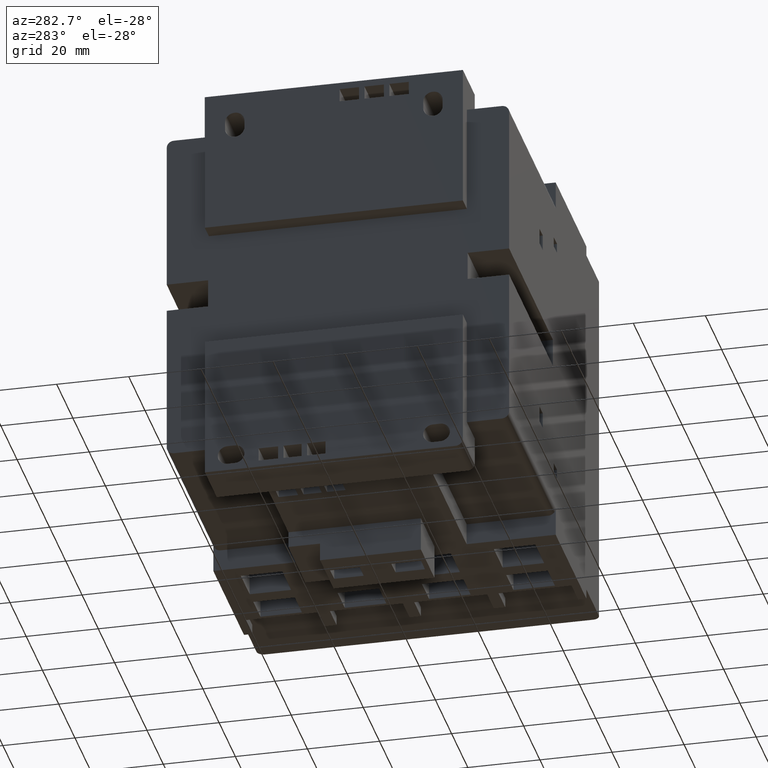
[diagram: clean part render]
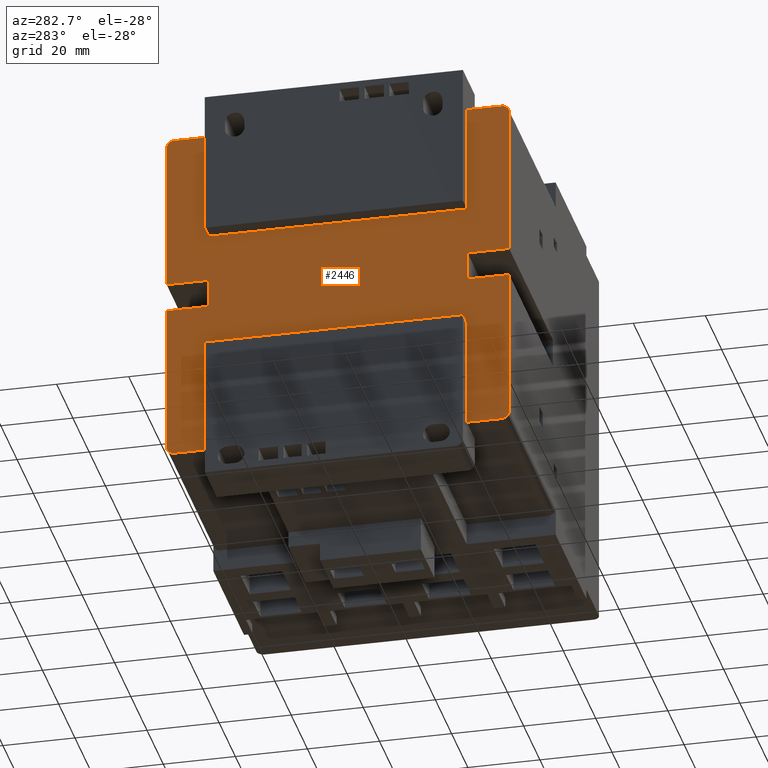
[diagram: same view with one face highlighted and labeled with its STEP entity id]
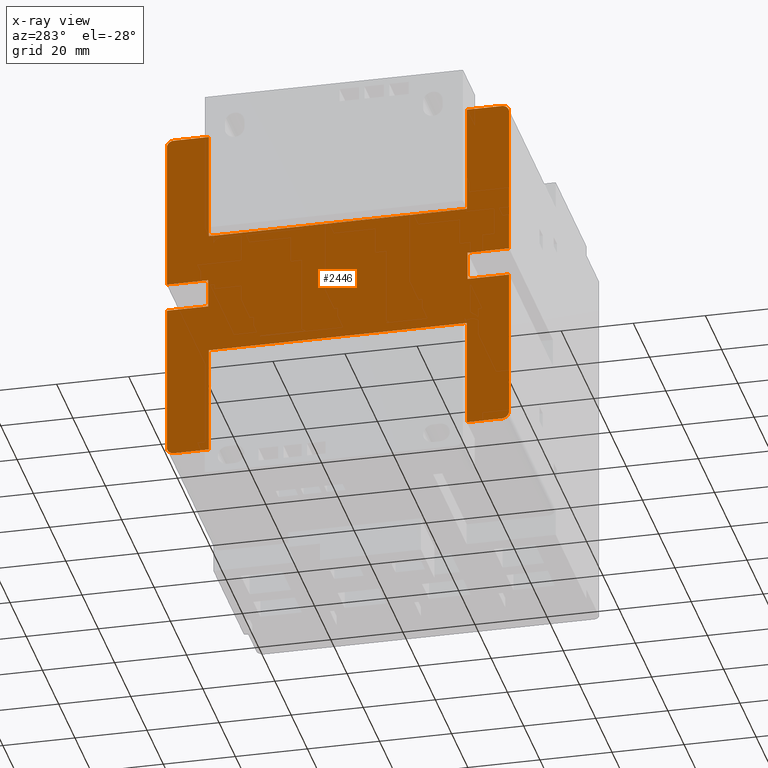
[diagram: x-ray of the same camera — body ghosted, the highlighted face saturated]
A machine part, auxiliary view. The second image highlights one B-rep face of the part: STEP entity #2446.
The next image is the same camera in x-ray: the body ghosted, the highlighted face saturated — about 0% of this face is hidden behind the body in this view.
In plain terms, the highlighted planar face has unit normal (-1, 0, 0).
Its self-contained STEP definition (entity closure, byte-faithful):
#2251=CIRCLE('',#10761,2.);
#2252=CIRCLE('',#10762,2.);
#2253=CIRCLE('',#10763,2.);
#2254=CIRCLE('',#10764,2.);
#2446=ADVANCED_FACE('',(#3268),#2872,.T.);
#2872=PLANE('',#10765);
#3268=FACE_OUTER_BOUND('',#3669,.T.);
#3669=EDGE_LOOP('',(#4236,#4237,#4238,#4239,#4240,#4241,#4242,#4243,#4244,
#4245,#4246,#4247,#4248,#4249,#4250,#4251,#4252,#4253,#4254,#4255,#4256,
#4257,#4258,#4259));
#4236=ORIENTED_EDGE('',*,*,#7217,.T.);
#4237=ORIENTED_EDGE('',*,*,#7218,.T.);
#4238=ORIENTED_EDGE('',*,*,#7219,.T.);
#4239=ORIENTED_EDGE('',*,*,#7220,.F.);
#4240=ORIENTED_EDGE('',*,*,#7221,.F.);
#4241=ORIENTED_EDGE('',*,*,#7222,.T.);
#4242=ORIENTED_EDGE('',*,*,#7223,.T.);
#4243=ORIENTED_EDGE('',*,*,#7224,.T.);
#4244=ORIENTED_EDGE('',*,*,#7225,.T.);
#4245=ORIENTED_EDGE('',*,*,#7226,.F.);
#4246=ORIENTED_EDGE('',*,*,#7227,.T.);
#4247=ORIENTED_EDGE('',*,*,#7228,.T.);
#4248=ORIENTED_EDGE('',*,*,#7229,.F.);
#4249=ORIENTED_EDGE('',*,*,#7230,.T.);
#4250=ORIENTED_EDGE('',*,*,#7231,.F.);
#4251=ORIENTED_EDGE('',*,*,#7232,.F.);
#4252=ORIENTED_EDGE('',*,*,#7233,.F.);
#4253=ORIENTED_EDGE('',*,*,#7234,.T.);
#4254=ORIENTED_EDGE('',*,*,#7235,.F.);
#4255=ORIENTED_EDGE('',*,*,#7236,.T.);
#4256=ORIENTED_EDGE('',*,*,#7237,.T.);
#4257=ORIENTED_EDGE('',*,*,#7238,.F.);
#4258=ORIENTED_EDGE('',*,*,#7239,.F.);
#4259=ORIENTED_EDGE('',*,*,#7240,.T.);
#6456=VERTEX_POINT('',#13448);
#6457=VERTEX_POINT('',#13449);
#6458=VERTEX_POINT('',#13451);
#6459=VERTEX_POINT('',#13453);
#6460=VERTEX_POINT('',#13455);
#6461=VERTEX_POINT('',#13457);
#6462=VERTEX_POINT('',#13459);
#6463=VERTEX_POINT('',#13461);
#6464=VERTEX_POINT('',#13463);
#6465=VERTEX_POINT('',#13465);
#6466=VERTEX_POINT('',#13467);
#6467=VERTEX_POINT('',#13469);
#6468=VERTEX_POINT('',#13471);
#6469=VERTEX_POINT('',#13473);
#6470=VERTEX_POINT('',#13475);
#6471=VERTEX_POINT('',#13477);
#6472=VERTEX_POINT('',#13479);
#6473=VERTEX_POINT('',#13481);
#6474=VERTEX_POINT('',#13483);
#6475=VERTEX_POINT('',#13485);
#6476=VERTEX_POINT('',#13487);
#6477=VERTEX_POINT('',#13489);
#6478=VERTEX_POINT('',#13491);
#6479=VERTEX_POINT('',#13493);
#7217=EDGE_CURVE('',#6456,#6457,#8327,.T.);
#7218=EDGE_CURVE('',#6457,#6458,#2251,.T.);
#7219=EDGE_CURVE('',#6458,#6459,#8328,.T.);
#7220=EDGE_CURVE('',#6460,#6459,#8329,.T.);
#7221=EDGE_CURVE('',#6461,#6460,#8330,.T.);
#7222=EDGE_CURVE('',#6461,#6462,#8331,.T.);
#7223=EDGE_CURVE('',#6462,#6463,#8332,.T.);
#7224=EDGE_CURVE('',#6463,#6464,#2252,.T.);
#7225=EDGE_CURVE('',#6464,#6465,#8333,.T.);
#7226=EDGE_CURVE('',#6466,#6465,#8334,.T.);
#7227=EDGE_CURVE('',#6466,#6467,#8335,.T.);
#7228=EDGE_CURVE('',#6467,#6468,#8336,.T.);
#7229=EDGE_CURVE('',#6469,#6468,#8337,.T.);
#7230=EDGE_CURVE('',#6469,#6470,#2253,.T.);
#7231=EDGE_CURVE('',#6471,#6470,#8338,.T.);
#7232=EDGE_CURVE('',#6472,#6471,#8339,.T.);
#7233=EDGE_CURVE('',#6473,#6472,#8340,.T.);
#7234=EDGE_CURVE('',#6473,#6474,#8341,.T.);
#7235=EDGE_CURVE('',#6475,#6474,#8342,.T.);
#7236=EDGE_CURVE('',#6475,#6476,#2254,.T.);
#7237=EDGE_CURVE('',#6476,#6477,#8343,.T.);
#7238=EDGE_CURVE('',#6478,#6477,#8344,.T.);
#7239=EDGE_CURVE('',#6479,#6478,#8345,.T.);
#7240=EDGE_CURVE('',#6479,#6456,#8346,.T.);
#8327=LINE('',#13447,#9373);
#8328=LINE('',#13452,#9374);
#8329=LINE('',#13454,#9375);
#8330=LINE('',#13456,#9376);
#8331=LINE('',#13458,#9377);
#8332=LINE('',#13460,#9378);
#8333=LINE('',#13464,#9379);
#8334=LINE('',#13466,#9380);
#8335=LINE('',#13468,#9381);
#8336=LINE('',#13470,#9382);
#8337=LINE('',#13472,#9383);
#8338=LINE('',#13476,#9384);
#8339=LINE('',#13478,#9385);
#8340=LINE('',#13480,#9386);
#8341=LINE('',#13482,#9387);
#8342=LINE('',#13484,#9388);
#8343=LINE('',#13488,#9389);
#8344=LINE('',#13490,#9390);
#8345=LINE('',#13492,#9391);
#8346=LINE('',#13494,#9392);
#9373=VECTOR('',#11352,1.);
#9374=VECTOR('',#11355,1.);
#9375=VECTOR('',#11356,1.);
#9376=VECTOR('',#11357,1.);
#9377=VECTOR('',#11358,1.);
#9378=VECTOR('',#11359,1.);
#9379=VECTOR('',#11362,1.);
#9380=VECTOR('',#11363,1.);
#9381=VECTOR('',#11364,1.);
#9382=VECTOR('',#11365,1.);
#9383=VECTOR('',#11366,1.);
#9384=VECTOR('',#11369,1.);
#9385=VECTOR('',#11370,1.);
#9386=VECTOR('',#11371,1.);
#9387=VECTOR('',#11372,1.);
#9388=VECTOR('',#11373,1.);
#9389=VECTOR('',#11376,1.);
#9390=VECTOR('',#11377,1.);
#9391=VECTOR('',#11378,1.);
#9392=VECTOR('',#11379,1.);
#10761=AXIS2_PLACEMENT_3D('',#13450,#11353,#11354);
#10762=AXIS2_PLACEMENT_3D('',#13462,#11360,#11361);
#10763=AXIS2_PLACEMENT_3D('',#13474,#11367,#11368);
#10764=AXIS2_PLACEMENT_3D('',#13486,#11374,#11375);
#10765=AXIS2_PLACEMENT_3D('',#13495,#11380,#11381);
#11352=DIRECTION('',(1.,0.,-2.34290668463255E-015));
#11353=DIRECTION('',(0.,0.,-1.));
#11354=DIRECTION('',(-1.,0.,0.));
#11355=DIRECTION('',(0.,-1.,0.));
#11356=DIRECTION('',(1.,0.,1.17145334231628E-015));
#11357=DIRECTION('',(0.,1.,0.));
#11358=DIRECTION('',(1.,0.,1.17145334231628E-015));
#11359=DIRECTION('',(0.,-1.,0.));
#11360=DIRECTION('',(0.,0.,-1.));
#11361=DIRECTION('',(-1.,0.,0.));
#11362=DIRECTION('',(-1.,0.,2.34290668463255E-015));
#11363=DIRECTION('',(0.,-1.,0.));
#11364=DIRECTION('',(-1.,0.,0.));
#11365=DIRECTION('',(0.,-1.,0.));
#11366=DIRECTION('',(1.,0.,0.));
#11367=DIRECTION('',(0.,0.,-1.));
#11368=DIRECTION('',(-1.,0.,0.));
#11369=DIRECTION('',(0.,-1.,0.));
#11370=DIRECTION('',(-1.,0.,0.));
#11371=DIRECTION('',(0.,-1.,0.));
#11372=DIRECTION('',(-1.,0.,0.));
#11373=DIRECTION('',(0.,-1.,0.));
#11374=DIRECTION('',(0.,0.,-1.));
#11375=DIRECTION('',(-1.,0.,0.));
#11376=DIRECTION('',(1.,0.,0.));
#11377=DIRECTION('',(0.,1.,6.16516561875365E-017));
#11378=DIRECTION('',(-1.,0.,0.));
#11379=DIRECTION('',(0.,1.,6.16516561875365E-017));
#11380=DIRECTION('',(0.,0.,-1.));
#11381=DIRECTION('',(-1.,0.,0.));
#13447=CARTESIAN_POINT('',(35.8,47.9,3.24904228108317E-015));
#13448=CARTESIAN_POINT('',(35.8,47.9,1.35818598581143E-014));
#13449=CARTESIAN_POINT('',(45.5,47.9,-1.94771525598526E-014));
#13450=CARTESIAN_POINT('',(45.5,45.9,0.));
#13451=CARTESIAN_POINT('',(47.5,45.9,-2.74120082102008E-014));
#13452=CARTESIAN_POINT('',(47.5,-17.5,-2.74120082102008E-014));
#13453=CARTESIAN_POINT('',(47.5,4.,1.4210854715202E-014));
#13454=CARTESIAN_POINT('',(36.,4.,7.39141278564836E-016));
#13455=CARTESIAN_POINT('',(36.,4.,7.39141278564836E-016));
#13456=CARTESIAN_POINT('',(36.,-4.,-4.0883721646838E-014));
#13457=CARTESIAN_POINT('',(36.,-4.,4.06074371177289E-016));
#13458=CARTESIAN_POINT('',(36.,-4.,4.06074371177289E-016));
#13459=CARTESIAN_POINT('',(47.5,-4.,1.38777878078145E-014));
#13460=CARTESIAN_POINT('',(47.5,-17.5,-2.74120082102008E-014));
#13461=CARTESIAN_POINT('',(47.5,-45.9,-2.74120082102008E-014));
#13462=CARTESIAN_POINT('',(45.5,-45.9,0.));
#13463=CARTESIAN_POINT('',(45.5,-47.9,-2.11895539764027E-014));
#13464=CARTESIAN_POINT('',(47.5,-47.9,-2.58753673456678E-014));
#13465=CARTESIAN_POINT('',(35.8,-47.9,1.53664086453309E-015));
#13466=CARTESIAN_POINT('',(35.8,0.,0.));
#13467=CARTESIAN_POINT('',(35.8,-17.5,0.));
#13468=CARTESIAN_POINT('',(35.8,-17.5,0.));
#13469=CARTESIAN_POINT('',(-35.8,-17.5,0.));
#13470=CARTESIAN_POINT('',(-35.8,0.,0.));
#13471=CARTESIAN_POINT('',(-35.8,-47.9,1.53664086453309E-015));
#13472=CARTESIAN_POINT('',(-47.5,-47.9,1.53664086453309E-015));
#13473=CARTESIAN_POINT('',(-45.5,-47.9,1.53664086453309E-015));
#13474=CARTESIAN_POINT('',(-45.5,-45.9,0.));
#13475=CARTESIAN_POINT('',(-47.5,-45.9,0.));
#13476=CARTESIAN_POINT('',(-47.5,-17.5,0.));
#13477=CARTESIAN_POINT('',(-47.5,-4.,1.4210854715202E-014));
#13478=CARTESIAN_POINT('',(-36.,-4.,1.4210854715202E-014));
#13479=CARTESIAN_POINT('',(-36.,-4.,1.4210854715202E-014));
#13480=CARTESIAN_POINT('',(-36.,4.,0.));
#13481=CARTESIAN_POINT('',(-36.,4.,1.38777878078145E-014));
#13482=CARTESIAN_POINT('',(-36.,4.,1.38777878078145E-014));
#13483=CARTESIAN_POINT('',(-47.5,4.,1.38777878078145E-014));
#13484=CARTESIAN_POINT('',(-47.5,-17.5,0.));
#13485=CARTESIAN_POINT('',(-47.5,45.9,0.));
#13486=CARTESIAN_POINT('',(-45.5,45.9,0.));
#13487=CARTESIAN_POINT('',(-45.5,47.9,3.24904228108317E-015));
#13488=CARTESIAN_POINT('',(-47.5,47.9,3.24904228108317E-015));
#13489=CARTESIAN_POINT('',(-35.8,47.9,3.24904228108317E-015));
#13490=CARTESIAN_POINT('',(-35.8,0.,0.));
#13491=CARTESIAN_POINT('',(-35.8,17.5,1.07890398328189E-015));
#13492=CARTESIAN_POINT('',(35.8,17.5,1.07890398328189E-015));
#13493=CARTESIAN_POINT('',(35.8,17.5,1.07890398328189E-015));
#13494=CARTESIAN_POINT('',(35.8,0.,0.));
#13495=CARTESIAN_POINT('',(35.8,0.,0.));